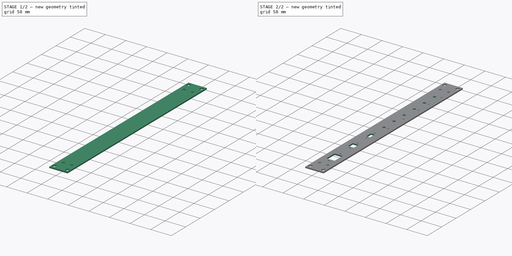
[diagram: build sequence overview — one tinted view per stage of 2, left to right]
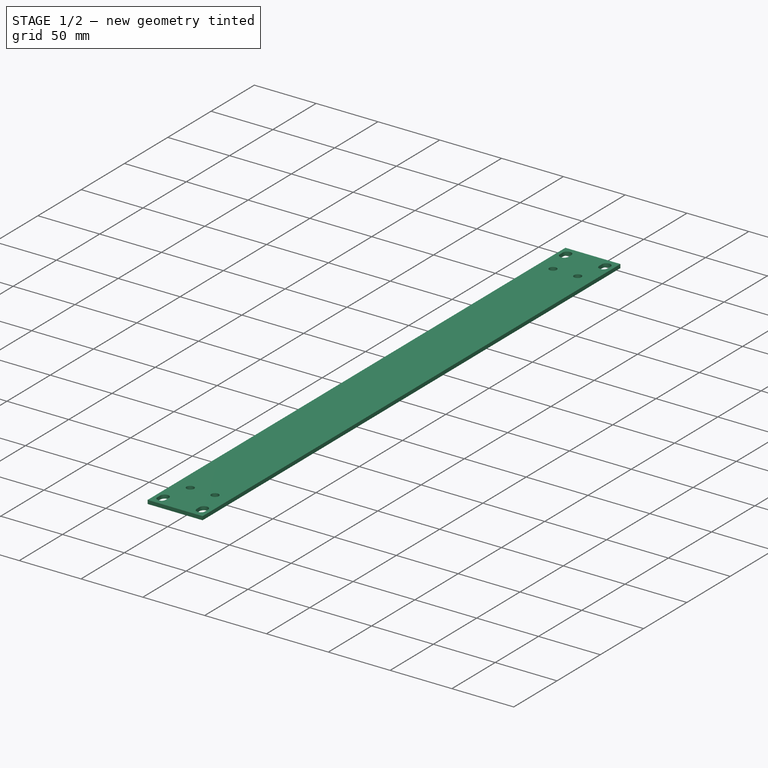
[diagram: stage 1 of 2 — iso view after this stage's code; geometry added in this stage tinted green]
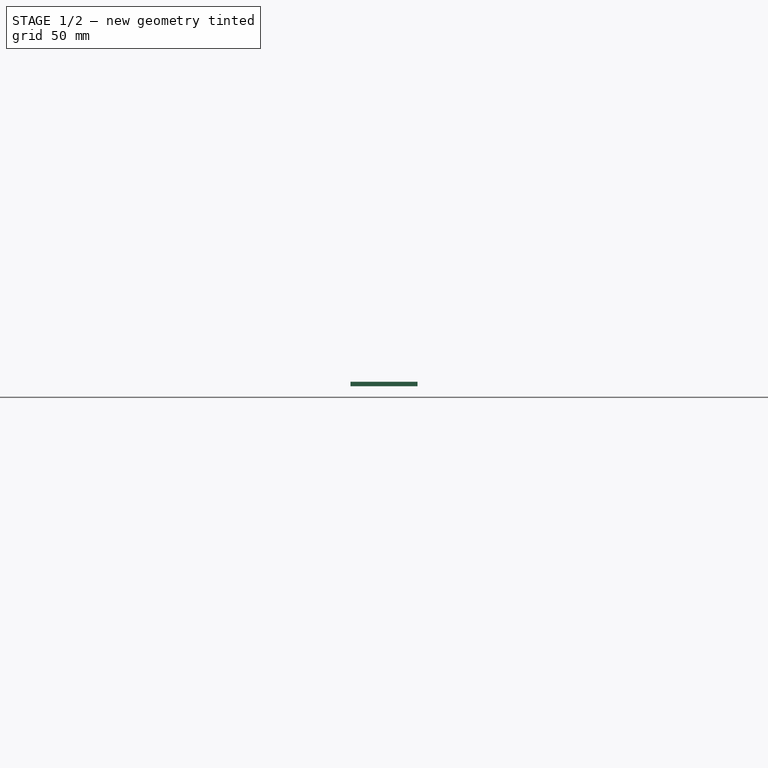
[diagram: stage 1 of 2 — front view after this stage's code; geometry added in this stage tinted green]
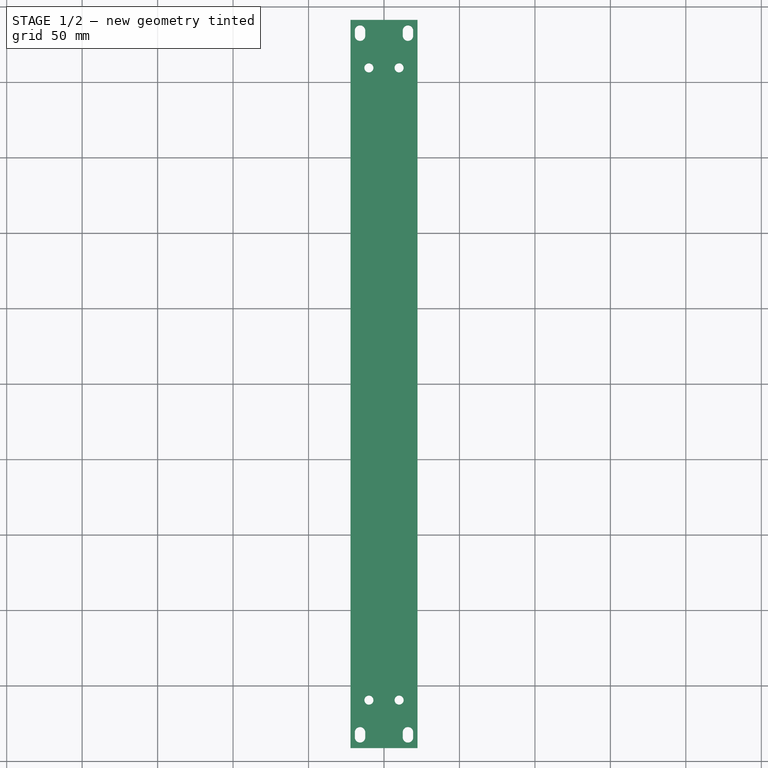
[diagram: stage 1 of 2 — top view after this stage's code; geometry added in this stage tinted green]
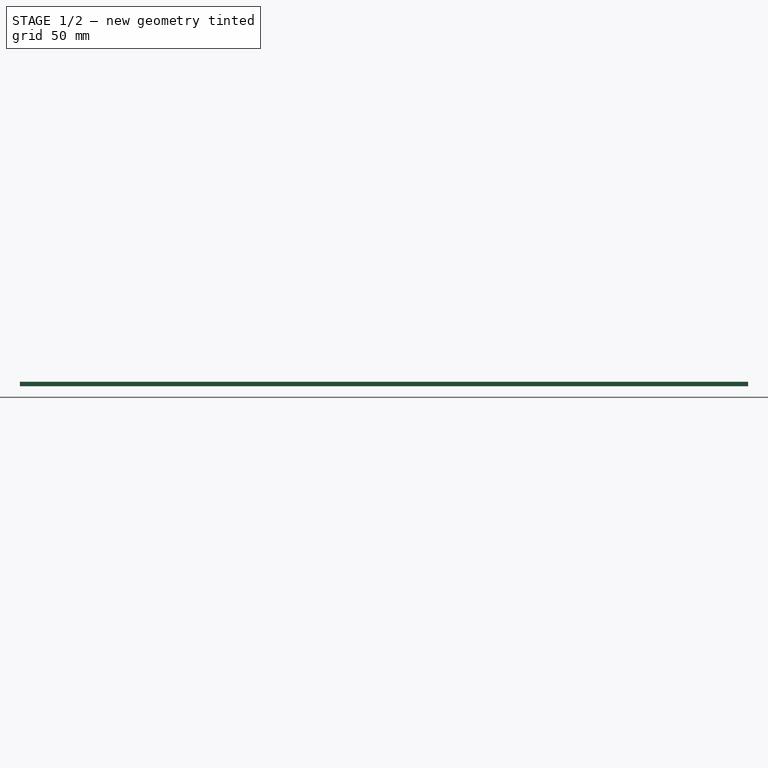
[diagram: stage 1 of 2 — right view after this stage's code; geometry added in this stage tinted green]
FCSTD DOCUMENT  (FreeCAD 0.19R24291 (Git))
Label: 1U_erratic_radio_box_panel
License: All rights reserved
LicenseURL: http://en.wikipedia.org/wiki/All_rights_reserved
objects: Part::Part2DObjectPython×13, Sketcher::SketchObject×2, PartDesign::Pad×1, Part::Feature×1, PartDesign::Pocket×1, PartDesign::Body×1, App::Part×1
note: 21 computed .brp shape members not serialized (recipe doc carries the construction recipe); baked Part::Feature solids carry a one-line shape summary decoded from their .brp

FEATURE [Sketcher::SketchObject] Sketch001
  FullyConstrained = true
  MapMode = 5
  expr: Constraints[19] = 10.3mm - .Constraints.short
  sketch-geometry (32):
    g0: LineSegment StartX=-15.875 StartY=232.5 StartZ=0 EndX=15.875 EndY=232.5 EndZ=0
    g1: LineSegment StartX=15.875 StartY=232.5 StartZ=0 EndX=15.875 EndY=-232.5 EndZ=0
    g2: LineSegment StartX=15.875 StartY=-232.5 StartZ=0 EndX=-15.875 EndY=-232.5 EndZ=0
    g3: LineSegment StartX=-15.875 StartY=-232.5 StartZ=0 EndX=-15.875 EndY=232.5 EndZ=0
    g4: ArcOfCircle CenterX=15.875 CenterY=234.2 CenterZ=0 NormalX=0 NormalY=0 NormalZ=1 AngleXU=0 Radius=3.45 StartAngle=5e-16 EndAngle=3.14159
    g5: ArcOfCircle CenterX=15.875 CenterY=230.8 CenterZ=0 NormalX=0 NormalY=0 NormalZ=1 AngleXU=0 Radius=3.45 StartAngle=3.14159 EndAngle=6.28319
    g6: LineSegment StartX=12.425 StartY=234.2 StartZ=0 EndX=12.425 EndY=230.8 EndZ=0
    g7: LineSegment StartX=19.325 StartY=234.2 StartZ=0 EndX=19.325 EndY=230.8 EndZ=0
    g8: ArcOfCircle CenterX=-15.875 CenterY=230.8 CenterZ=0 NormalX=0 NormalY=0 NormalZ=1 AngleXU=0 Radius=3.45 StartAngle=3.14159 EndAngle=6.28319
    g9: LineSegment StartX=-12.425 StartY=234.2 StartZ=0 EndX=-12.425 EndY=230.8 EndZ=0
    g10: ArcOfCircle CenterX=-15.875 CenterY=234.2 CenterZ=0 NormalX=0 NormalY=0 NormalZ=1 AngleXU=0 Radius=3.45 StartAngle=-9e-16 EndAngle=3.14159
    g11: LineSegment StartX=-19.325 StartY=234.2 StartZ=0 EndX=-19.325 EndY=230.8 EndZ=0
    g12: ArcOfCircle CenterX=15.875 CenterY=-234.2 CenterZ=0 NormalX=0 NormalY=0 NormalZ=1 AngleXU=0 Radius=3.45 StartAngle=3.14159 EndAngle=6.28319
    g13: LineSegment StartX=19.325 StartY=-230.8 StartZ=0 EndX=19.325 EndY=-234.2 EndZ=0
    g14: ArcOfCircle CenterX=15.875 CenterY=-230.8 CenterZ=0 NormalX=0 NormalY=0 NormalZ=1 AngleXU=0 Radius=3.45 StartAngle=2.5e-15 EndAngle=3.14159
    g15: LineSegment StartX=12.425 StartY=-230.8 StartZ=0 EndX=12.425 EndY=-234.2 EndZ=0
    g16: ArcOfCircle CenterX=-15.875 CenterY=-234.2 CenterZ=0 NormalX=0 NormalY=0 NormalZ=1 AngleXU=0 Radius=3.45 StartAngle=3.14159 EndAngle=6.28319
    g17: LineSegment StartX=-12.425 StartY=-230.8 StartZ=0 EndX=-12.425 EndY=-234.2 EndZ=0
    g18: ArcOfCircle CenterX=-15.875 CenterY=-230.8 CenterZ=0 NormalX=0 NormalY=0 NormalZ=1 AngleXU=0 Radius=3.45 StartAngle=-2.7e-15 EndAngle=3.14159
    g19: LineSegment StartX=-19.325 StartY=-230.8 StartZ=0 EndX=-19.325 EndY=-234.2 EndZ=0
    g20: LineSegment StartX=-22.225 StartY=241.3 StartZ=0 EndX=22.225 EndY=241.3 EndZ=0
    g21: LineSegment StartX=22.225 StartY=241.3 StartZ=0 EndX=22.225 EndY=-241.3 EndZ=0
    g22: LineSegment StartX=22.225 StartY=-241.3 StartZ=0 EndX=-22.225 EndY=-241.3 EndZ=0
    g23: LineSegment StartX=-22.225 StartY=-241.3 StartZ=0 EndX=-22.225 EndY=241.3 EndZ=0
    g24: LineSegment StartX=-10 StartY=-209.5 StartZ=0 EndX=10 EndY=-209.5 EndZ=0
    g25: LineSegment StartX=10 StartY=-209.5 StartZ=0 EndX=10 EndY=209.5 EndZ=0
    g26: LineSegment StartX=10 StartY=209.5 StartZ=0 EndX=-10 EndY=209.5 EndZ=0
    g27: LineSegment StartX=-10 StartY=209.5 StartZ=0 EndX=-10 EndY=-209.5 EndZ=0
    g28: Circle CenterX=-10 CenterY=-209.5 CenterZ=0 NormalX=0 NormalY=0 NormalZ=1 AngleXU=0 Radius=3
    g29: Circle CenterX=10 CenterY=-209.5 CenterZ=0 NormalX=0 NormalY=0 NormalZ=1 AngleXU=0 Radius=3
    g30: Circle CenterX=-10 CenterY=209.5 CenterZ=0 NormalX=0 NormalY=0 NormalZ=1 AngleXU=0 Radius=3
    g31: Circle CenterX=10 CenterY=209.5 CenterZ=0 NormalX=0 NormalY=0 NormalZ=1 AngleXU=0 Radius=3
  constraints (77):
    c: Coincident(g0,g1)
    c: Coincident(g1,g2)
    c: Coincident(g2,g3)
    c: Coincident(g3,g0)
    c: Horizontal(g0)
    c: Horizontal(g2)
    c: Vertical(g1)
    c: Vertical(g3)
    c: Symmetric(g0,g2,g-1)
    c: DistanceX(g0,g0) = 31.75
    c: DistanceY(g3,g3) = 465
    c: Tangent(g4,g7) = 1.5708
    c: Tangent(g4,g6) = -1.5708
    c: Tangent(g6,g5) = -1.5708
    c: Tangent(g7,g5) = 1.5708
    c: Vertical(g6)
    c: Equal(g4,g5)
    c: Symmetric(g4,g5,g0)
    c: DistanceX(g5,g5) = 6.9  'short'
    c: DistanceY(g5,g4) = 3.4
    c: Tangent(g10,g9) = 1.5708
    c: Tangent(g10,g11) = -1.5708
    c: Tangent(g11,g8) = -1.5708
    c: Tangent(g9,g8) = 1.5708
    c: Vertical(g11)
    c: Equal(g10,g8)
    c: Equal(g5,g8) = 6.9  'short'
    c: DistanceY(g8,g10) = 3.4
    c: Symmetric(g8,g10,g0)
    c: Tangent(g14,g13) = 1.5708
    c: Tangent(g14,g15) = -1.5708
    c: Tangent(g15,g12) = -1.5708
    c: Tangent(g13,g12) = 1.5708
    c: Vertical(g15)
    c: Equal(g14,g12)
    c: Equal(g5,g12) = 6.9  'short'
    c: DistanceY(g12,g14) = 3.4
    c: Symmetric(g12,g14,g1)
    c: Tangent(g18,g17) = 1.5708
    c: Tangent(g18,g19) = -1.5708
    c: Tangent(g19,g16) = -1.5708
    c: Tangent(g17,g16) = 1.5708
    c: Vertical(g19)
    c: Equal(g18,g16)
    c: Equal(g5,g16) = 6.9  'short'
    c: DistanceY(g16,g18) = 3.4
    c: Symmetric(g16,g18,g2)
    c: Coincident(g20,g21)
    c: Coincident(g21,g22)
    c: Coincident(g22,g23)
    c: Coincident(g23,g20)
    c: Horizontal(g20)
    c: Horizontal(g22)
    c: Vertical(g21)
    c: Vertical(g23)
    c: Symmetric(g20,g22,g-1)
    c: DistanceX(g20,g20) = 44.45
    c: DistanceY(g21,g21) = 482.6
    c: Coincident(g24,g25)
    c: Coincident(g25,g26)
    c: Coincident(g26,g27)
    c: Coincident(g27,g24)
    c: Horizontal(g24)
    c: Horizontal(g26)
    c: Vertical(g25)
    c: Vertical(g27)
    c: DistanceX(g24,g24) = 20
    c: Symmetric(g26,g24,g-1)
    c: DistanceY(g25,g25) = 419
    c: Coincident(g28,g24)
    c: Coincident(g29,g24)
    c: Coincident(g30,g26)
    c: Coincident(g31,g25)
    c: Equal(g31,g30)
    c: Equal(g30,g28)
    c: Equal(g28,g29)
    c: Diameter(g28) = 6
FEATURE [PartDesign::Pad] Pad
  Direction = (1,1,1)
  Length = 3
  Length2 = 100
  Profile = -> Sketch001
  Type = 0
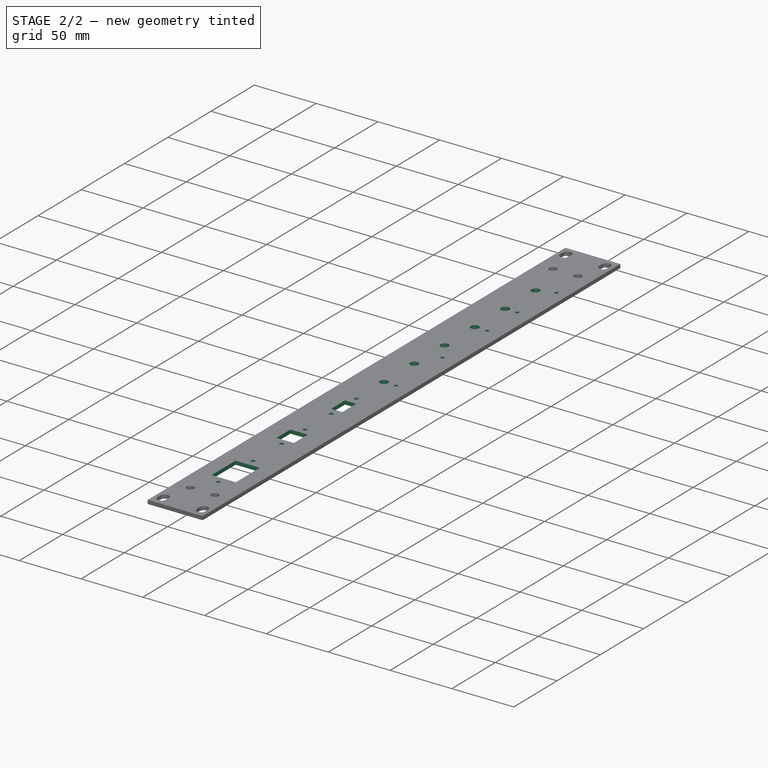
[diagram: stage 2 of 2 — iso view after this stage's code; geometry added in this stage tinted green]
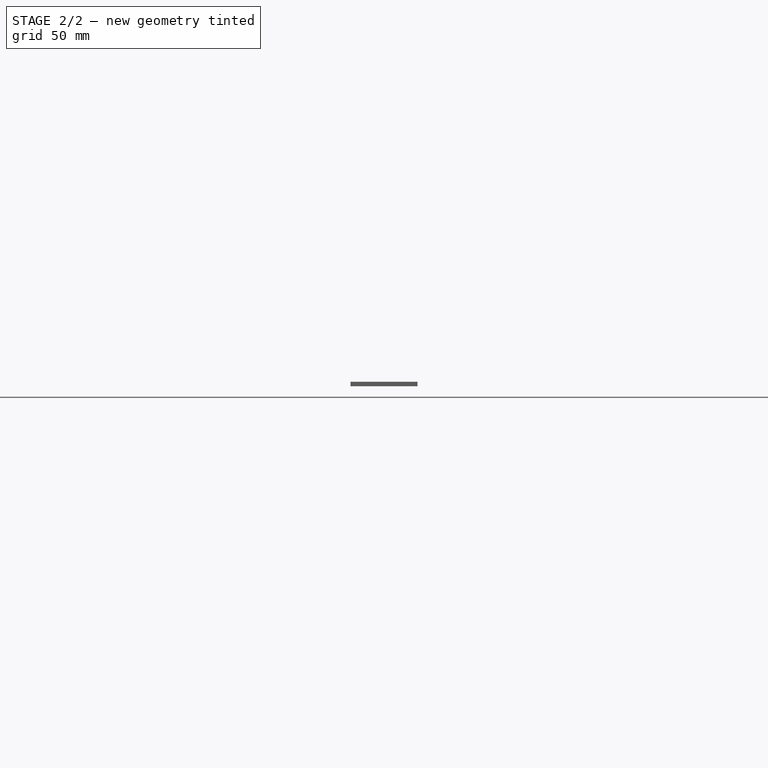
[diagram: stage 2 of 2 — front view after this stage's code; geometry added in this stage tinted green]
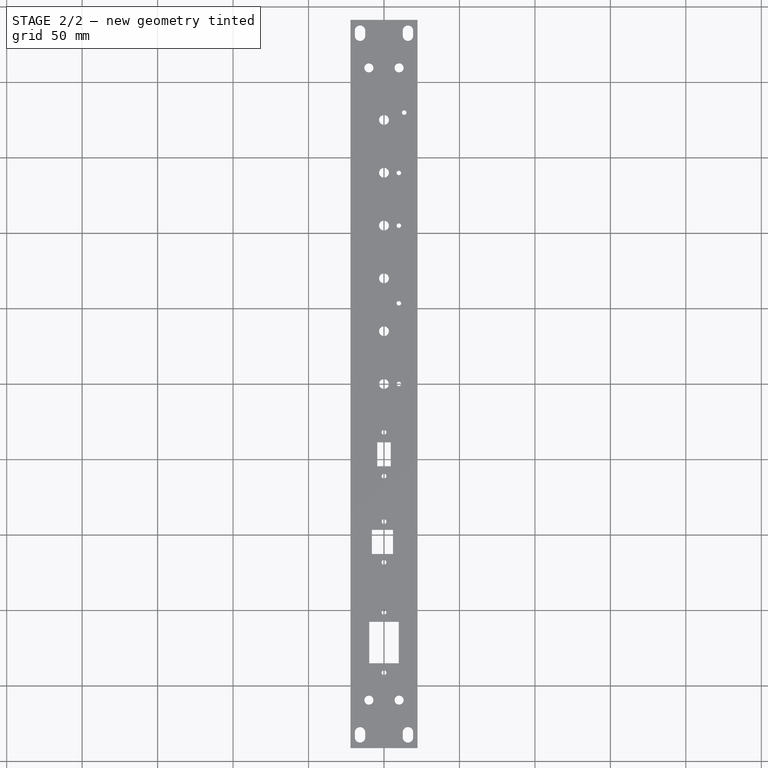
[diagram: stage 2 of 2 — top view after this stage's code; geometry added in this stage tinted green]
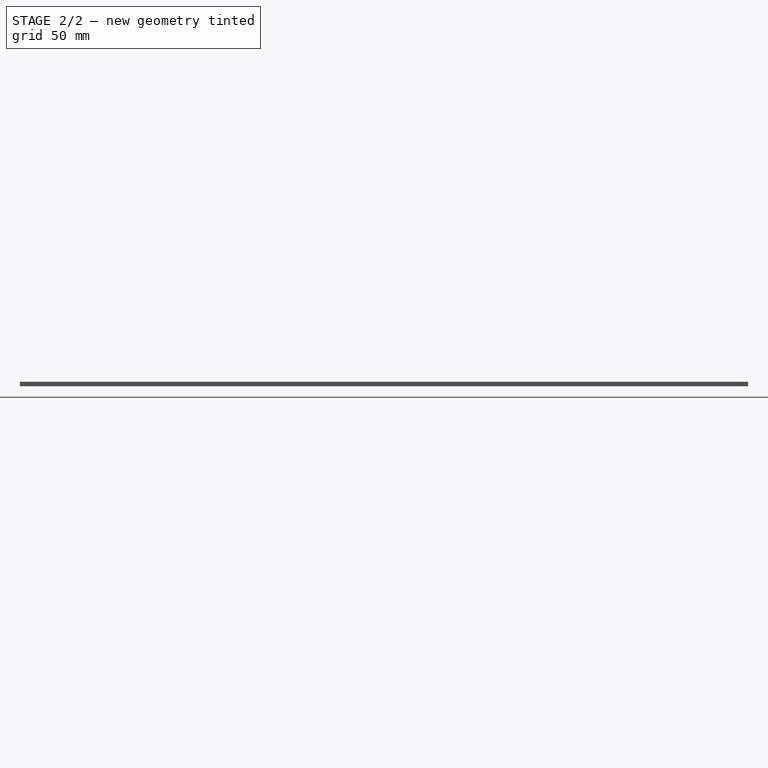
[diagram: stage 2 of 2 — right view after this stage's code; geometry added in this stage tinted green]
FEATURE [Sketcher::SketchObject] Sketch
  ExternalGeometry = -> [Pad]
  FullyConstrained = false
  MapMode = 5
  Placement = pos=(0,0,3) rot=(0,0,1;0rad)
  Support = -> [Pad]
  sketch-geometry (53):
    g0: LineSegment StartX=-4.5 StartY=-38.5444 StartZ=0 EndX=4.5 EndY=-38.5444 EndZ=0
    g1: LineSegment StartX=4.5 StartY=-38.5444 StartZ=0 EndX=4.5 EndY=-54.5444 EndZ=0
    g2: LineSegment StartX=4.5 StartY=-54.5444 StartZ=0 EndX=-4.5 EndY=-54.5444 EndZ=0
    g3: LineSegment StartX=-4.5 StartY=-54.5444 StartZ=0 EndX=-4.5 EndY=-38.5444 EndZ=0
    g4: LineSegment StartX=-9.8 StartY=-185.1 StartZ=0 EndX=9.8 EndY=-185.1 EndZ=0
    g5: LineSegment StartX=9.8 StartY=-185.1 StartZ=0 EndX=9.8 EndY=-157.5 EndZ=0
    g6: LineSegment StartX=9.8 StartY=-157.5 StartZ=0 EndX=-9.8 EndY=-157.5 EndZ=0
    g7: LineSegment StartX=-9.8 StartY=-157.5 StartZ=0 EndX=-9.8 EndY=-185.1 EndZ=0
    g8: LineSegment StartX=-8 StartY=-112.677 StartZ=0 EndX=6 EndY=-112.677 EndZ=0
    g9: LineSegment StartX=6 StartY=-112.677 StartZ=0 EndX=6 EndY=-96.677 EndZ=0
    g10: LineSegment StartX=6 StartY=-96.677 StartZ=0 EndX=-8 EndY=-96.677 EndZ=0
    g11: LineSegment StartX=-8 StartY=-96.677 StartZ=0 EndX=-8 EndY=-112.677 EndZ=0
    g12: Circle CenterX=0 CenterY=0 CenterZ=0 NormalX=0 NormalY=0 NormalZ=1 AngleXU=0 Radius=3.25
    g13: GeomPoint X=0 Y=-171.3 Z=0
    g14: GeomPoint X=-1 Y=-104.677 Z=0
    g15: Circle CenterX=0 CenterY=-91.177 CenterZ=0 NormalX=0 NormalY=0 NormalZ=1 AngleXU=0 Radius=1.6
    g16: Circle CenterX=0 CenterY=-118.177 CenterZ=0 NormalX=0 NormalY=0 NormalZ=1 AngleXU=0 Radius=1.6
    g17: LineSegment StartX=0 StartY=-118.177 StartZ=0 EndX=0 EndY=-91.177 EndZ=0
    g18: GeomPoint X=0 Y=-104.677 Z=0
    g19: GeomPoint X=0 Y=-46.5444 Z=0
    g20: Circle CenterX=0 CenterY=-61.0444 CenterZ=0 NormalX=0 NormalY=0 NormalZ=1 AngleXU=0 Radius=1.6
    g21: Circle CenterX=0 CenterY=-32.0444 CenterZ=0 NormalX=0 NormalY=0 NormalZ=1 AngleXU=0 Radius=1.6
    g22: LineSegment StartX=0 StartY=-61.0444 StartZ=0 EndX=0 EndY=-32.0444 EndZ=0
    g23: Circle CenterX=0 CenterY=35 CenterZ=0 NormalX=0 NormalY=0 NormalZ=1 AngleXU=0 Radius=3.25
    g24: LineSegment StartX=0 StartY=0 StartZ=0 EndX=0 EndY=35 EndZ=0
    g25: Circle CenterX=0 CenterY=70 CenterZ=0 NormalX=0 NormalY=0 NormalZ=1 AngleXU=0 Radius=3.25
    g26: LineSegment StartX=0 StartY=35 StartZ=0 EndX=0 EndY=70 EndZ=0
    g27: Circle CenterX=0 CenterY=105 CenterZ=0 NormalX=0 NormalY=0 NormalZ=1 AngleXU=0 Radius=3.25
    g28: LineSegment StartX=0 StartY=70 StartZ=0 EndX=0 EndY=105 EndZ=0
    g29: Circle CenterX=0 CenterY=140 CenterZ=0 NormalX=0 NormalY=0 NormalZ=1 AngleXU=0 Radius=3.25
    g30: LineSegment StartX=0 StartY=105 StartZ=0 EndX=0 EndY=140 EndZ=0
    g31: Circle CenterX=0 CenterY=175 CenterZ=0 NormalX=0 NormalY=0 NormalZ=1 AngleXU=0 Radius=3.25
    g32: LineSegment StartX=0 StartY=140 StartZ=0 EndX=0 EndY=175 EndZ=0
    g33: Circle CenterX=-10 CenterY=0 CenterZ=0 NormalX=0 NormalY=0 NormalZ=1 AngleXU=0 Radius=1.5
    g34: Circle CenterX=-10 CenterY=35 CenterZ=0 NormalX=0 NormalY=0 NormalZ=1 AngleXU=0 Radius=1.5
    g35: LineSegment StartX=-10 StartY=0 StartZ=0 EndX=-10 EndY=35 EndZ=0
    g36: Circle CenterX=-10 CenterY=70 CenterZ=0 NormalX=0 NormalY=0 NormalZ=1 AngleXU=0 Radius=1.5
    g37: LineSegment StartX=-10 StartY=35 StartZ=0 EndX=-10 EndY=70 EndZ=0
    g38: Circle CenterX=-10 CenterY=105 CenterZ=0 NormalX=0 NormalY=0 NormalZ=1 AngleXU=0 Radius=1.5
    g39: LineSegment StartX=-10 StartY=70 StartZ=0 EndX=-10 EndY=105 EndZ=0
    g40: Circle CenterX=-10 CenterY=140 CenterZ=0 NormalX=0 NormalY=0 NormalZ=1 AngleXU=0 Radius=1.5
    g41: LineSegment StartX=-10 StartY=105 StartZ=0 EndX=-10 EndY=140 EndZ=0
    g42: Circle CenterX=-10 CenterY=175 CenterZ=0 NormalX=0 NormalY=0 NormalZ=1 AngleXU=0 Radius=1.5
    g43: LineSegment StartX=-10 StartY=140 StartZ=0 EndX=-10 EndY=175 EndZ=0
    g44: LineSegment StartX=9.84362 StartY=0 StartZ=0 EndX=9.84362 EndY=242.577 EndZ=0
    g45: Circle CenterX=9.84362 CenterY=0 CenterZ=0 NormalX=0 NormalY=0 NormalZ=1 AngleXU=0 Radius=1.5
    g46: Circle CenterX=9.84362 CenterY=53.4583 CenterZ=0 NormalX=0 NormalY=0 NormalZ=1 AngleXU=0 Radius=1.5
    g47: Circle CenterX=9.84362 CenterY=104.952 CenterZ=0 NormalX=0 NormalY=0 NormalZ=1 AngleXU=0 Radius=1.5
    g48: Circle CenterX=9.84362 CenterY=139.878 CenterZ=0 NormalX=0 NormalY=0 NormalZ=1 AngleXU=0 Radius=1.5
    g49: Circle CenterX=13.4202 CenterY=179.879 CenterZ=0 NormalX=0 NormalY=0 NormalZ=1 AngleXU=0 Radius=1.5
    g50: Circle CenterX=0 CenterY=-191.3 CenterZ=0 NormalX=0 NormalY=0 NormalZ=1 AngleXU=0 Radius=1.6
    g51: Circle CenterX=0 CenterY=-151.3 CenterZ=0 NormalX=0 NormalY=0 NormalZ=1 AngleXU=0 Radius=1.6
    g52: LineSegment StartX=0 StartY=-191.3 StartZ=0 EndX=0 EndY=-151.3 EndZ=0
  constraints (126):
    c: Coincident(g0,g1)
    c: Coincident(g1,g2)
    c: Coincident(g2,g3)
    c: Coincident(g3,g0)
    c: Horizontal(g0)
    c: Horizontal(g2)
    c: Vertical(g1)
    c: Vertical(g3)
    c: Coincident(g4,g5)
    c: Coincident(g5,g6)
    c: Coincident(g6,g7)
    c: Coincident(g7,g4)
    c: Horizontal(g4)
    c: Horizontal(g6)
    c: Vertical(g5)
    c: Vertical(g7)
    c: Coincident(g8,g9)
    c: Coincident(g9,g10)
    c: Coincident(g10,g11)
    c: Coincident(g11,g8)
    c: Horizontal(g8)
    c: Horizontal(g10)
    c: Vertical(g9)
    c: Vertical(g11)
    c: Diameter(g12) = 6.5
    c: Symmetric(g6,g4,g13)
    c: PointOnObject(g13,g-2)
    c: Distance(g5) = 27.6
    c: Distance(g6) = 19.6
    c: DistanceY(g-3,g13) = 70
    c: Symmetric(g8,g10,g14)
    c: Distance(g10) = 14
    c: Distance(g9) = 16
    c: Coincident(g17,g16)
    c: Coincident(g17,g15)
    c: Vertical(g17)
    c: Symmetric(g15,g16,g18)
    c: Horizontal(g18,g14)
    c: Distance(g17) = 27
    c: Equal(g16,g15)
    c: Diameter(g16) = 3.2
    c: DistanceX(g8,g16) = 8
    c: PointOnObject(g15,g-2)
    c: Symmetric(g0,g1,g19)
    c: Symmetric(g21,g20,g19)
    c: Coincident(g22,g20)
    c: Coincident(g22,g21)
    c: Vertical(g22)
    c: Equal(g21,g20)
    c: Diameter(g20) = 3.2
    c: Distance(g22) = 29
    c: Distance(g0) = 9
    c: Distance(g1) = 16
    c: PointOnObject(g21,g-2)
    c: Equal(g12,g23) = 6
    c: Coincident(g12,g24)
    c: Coincident(g23,g24)
    c: Equal(g12,g25) = 6
    c: Coincident(g23,g26)
    c: Coincident(g25,g26)
    c: Equal(g24,g26)
    c: Parallel(g26,g24)
    c: Equal(g12,g27) = 6
    c: Coincident(g25,g28)
    c: Coincident(g27,g28)
    c: Equal(g24,g28)
    c: Parallel(g28,g24)
    c: Equal(g12,g29) = 6
    c: Coincident(g27,g30)
    c: Coincident(g29,g30)
    c: Equal(g24,g30)
    c: Parallel(g30,g24)
    c: Equal(g12,g31) = 6
    c: Coincident(g29,g32)
    c: Coincident(g31,g32)
    c: Equal(g24,g32)
    c: Parallel(g32,g24)
    c: Vertical(g24)
    c: PointOnObject(g12,g-2)
    c: PointOnObject(g12,g-1)
    c: Distance(g31,g29) = 35
    c: PointOnObject(g33,g-1)
    c: Diameter(g33) = 3
    c: Equal(g33,g34) = 3
    c: Coincident(g33,g35)
    c: Coincident(g34,g35)
    c: Equal(g33,g36) = 3
    c: Coincident(g34,g37)
    c: Coincident(g36,g37)
    c: Equal(g35,g37)
    c: Parallel(g37,g35)
    c: Equal(g33,g38) = 3
    c: Coincident(g36,g39)
    c: Coincident(g38,g39)
    c: Equal(g35,g39)
    c: Parallel(g39,g35)
    c: Equal(g33,g40) = 3
    c: Coincident(g38,g41)
    c: Coincident(g40,g41)
    c: Equal(g35,g41)
    c: Parallel(g41,g35)
    c: Equal(g33,g42) = 3
    c: Coincident(g40,g43)
    c: Coincident(g42,g43)
    c: Equal(g35,g43)
    c: Parallel(g43,g35)
    c: Vertical(g35)
    c: Equal(g32,g37)
    c: DistanceX(g33,g12) = 10
    c: PointOnObject(g44,g-1)
    c: Vertical(g44)
    c: Coincident(g45,g44)
    c: PointOnObject(g46,g44)
    c: PointOnObject(g47,g44)
    c: PointOnObject(g48,g44)
    c: Equal(g45,g46)
    c: Equal(g46,g47)
    c: Equal(g47,g48)
    c: Diameter(g45) = 3
    c: Symmetric(g51,g50,g13)
    c: Coincident(g52,g50)
    c: Coincident(g52,g51)
    c: Distance(g52) = 40
    c: Equal(g16,g51)
    c: Equal(g51,g50)
    c: Vertical(g52)
FEATURE [Part::Part2DObjectPython] ShapeString  label="ShapeString_OZ3RF"  # Draft 2D object (typed FeaturePython)
  FontFile = <path>
  Placement = pos=(-217.16,-2.21,0) rot=(0,0,1;0rad)
  Size = 2.1
  String = OZ3RF
  Tracking = 0
FEATURE [Part::Part2DObjectPython] ShapeString001  label="ShapeString_ETH"  # Draft 2D object (typed FeaturePython)
  FontFile = <path>
  Placement = pos=(-118.4,13.98,0) rot=(0,0,1;0rad)
  Size = 2.1
  String = Ethernet
  Tracking = 0
FEATURE [Part::Feature] Part__Feature  label="Kaltgeraetebuchse2"
  Placement = pos=(-171.4,0,-9.8) rot=(0,0,1;0rad)
  shape: bbox 49.74 x 22.33 x 26.5 mm, 145 faces (baked)
FEATURE [PartDesign::Pocket] Pocket
  BaseFeature = -> Pad
  Length = 5
  Length2 = 100
  Profile = -> Sketch
  Type = 1
FEATURE [PartDesign::Body] Body
  Group = -> [Sketch001,Pad,Sketch,Pocket]
  Origin = -> Origin001
  Placement = pos=(0,0,0) rot=(0,0,1;4.71239rad)
  Tip = -> Pocket
FEATURE [Part::Part2DObjectPython] ShapeString002  label="ShapeString_ERRATIC"  # Draft 2D object (typed FeaturePython)
  FontFile = <path>
  Placement = pos=(-149.83,-19.42,0) rot=(0,0,1;0rad)
  Size = 5
  String = ERRATIC RADIO BOX
  Tracking = 0
FEATURE [Part::Part2DObjectPython] ShapeString003  label="ShapeString_USB"  # Draft 2D object (typed FeaturePython)
  FontFile = <path>
  Placement = pos=(-52.4,13.98,0) rot=(0,0,1;0rad)
  Size = 2.1
  String = USB
  Tracking = 0
FEATURE [Part::Part2DObjectPython] ShapeString004  label="ShapeString_RXTXs"  # Draft 2D object (typed FeaturePython)
  FontFile = <path>
  Placement = pos=(-8.4,13.98,0) rot=(0,0,1;0rad)
  Size = 2.1
  String = RX/TX       TX        RX        RX/TX     RX/TX       RX
  Tracking = 0
FEATURE [Part::Part2DObjectPython] ShapeString005  label="ShapeString_OZ3RF001"  # Draft 2D object (typed FeaturePython)
  FontFile = <path>
  Placement = pos=(200.84,-2.21,0) rot=(0,0,1;0rad)
  Size = 2.1
  String = OZ3RF
  Tracking = 0
FEATURE [Part::Part2DObjectPython] ShapeString006  label="ShapeString_RTLSDR"  # Draft 2D object (typed FeaturePython)
  FontFile = <path>
  Placement = pos=(164.84,-10.21,0) rot=(0,0,1;0rad)
  Size = 2.1
  String = RTLSDR
  Tracking = 0
FEATURE [Part::Part2DObjectPython] ShapeString007  label="ShapeString_RTLSDR001"  # Draft 2D object (typed FeaturePython)
  FontFile = <path>
  Placement = pos=(164.84,-20.21,0) rot=(0,0,1;0rad)
  Size = 2.1
  String = AIRSPY
  Tracking = 0
FEATURE [Part::Part2DObjectPython] ShapeString008  label="ShapeString_RTLSDR002"  # Draft 2D object (typed FeaturePython)
  FontFile = <path>
  Placement = pos=(172.84,-15.21,0) rot=(0,0,1;0rad)
  Size = 2.1
  String = +
  Tracking = 0
FEATURE [Part::Part2DObjectPython] ShapeString009  label="ShapeString_hackrfone"  # Draft 2D object (typed FeaturePython)
  FontFile = <path>
  Placement = pos=(123.84,-19.21,0) rot=(0,0,1;0rad)
  Size = 2.1
  String = HackRF One
  Tracking = 0
FEATURE [Part::Part2DObjectPython] ShapeString010  label="ShapeString_BBOX"  # Draft 2D object (typed FeaturePython)
  FontFile = <path>
  Placement = pos=(98.84,-19.21,0) rot=(0,0,1;0rad)
  Size = 2.1
  String = BBOX
  Tracking = 0
FEATURE [Part::Part2DObjectPython] ShapeString011  label="ShapeString_limesdr"  # Draft 2D object (typed FeaturePython)
  FontFile = <path>
  Placement = pos=(32.84,-19.21,0) rot=(0,0,1;0rad)
  Size = 2.1
  String = LimeSDR Mini
  Tracking = 0
FEATURE [Part::Part2DObjectPython] ShapeString012  label="ShapeString_CC2531"  # Draft 2D object (typed FeaturePython)
  FontFile = <path>
  Placement = pos=(-9.16,-19.21,0) rot=(0,0,1;0rad)
  Size = 2.1
  String = CC2531
  Tracking = 0
FEATURE [App::Part] Part
  Group = -> [Body,ShapeString,ShapeString001,ShapeString002,ShapeString003,ShapeString004,ShapeString005,ShapeString006,ShapeString007,ShapeString008,ShapeString009,ShapeString010,ShapeString011,ShapeString012]
  Origin = -> Origin
note: 13 file-system paths scrubbed to <path> (originals preserved in the JSON sidecar)
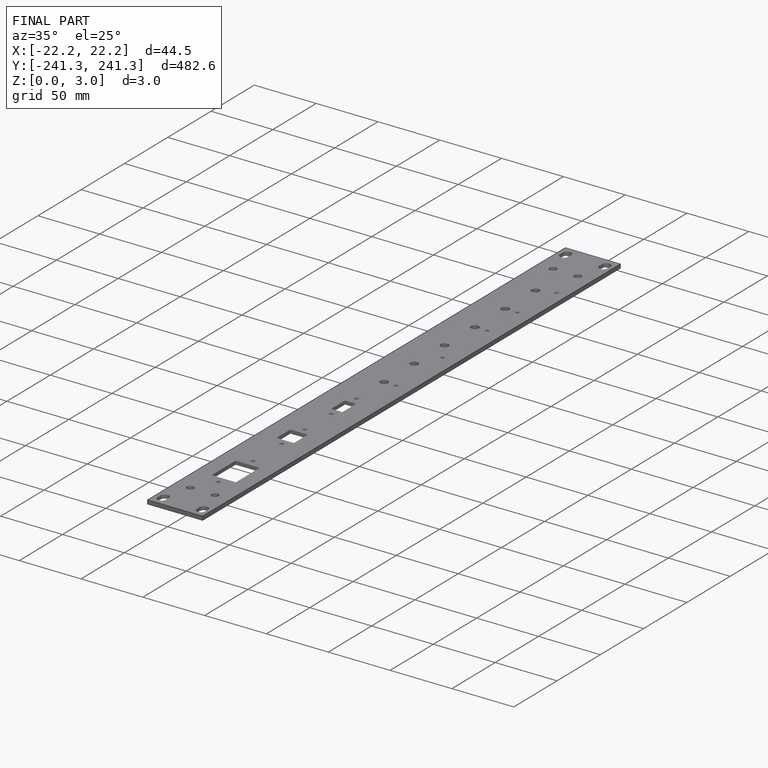
[diagram: finished part — iso view with bounding-box wireframe]
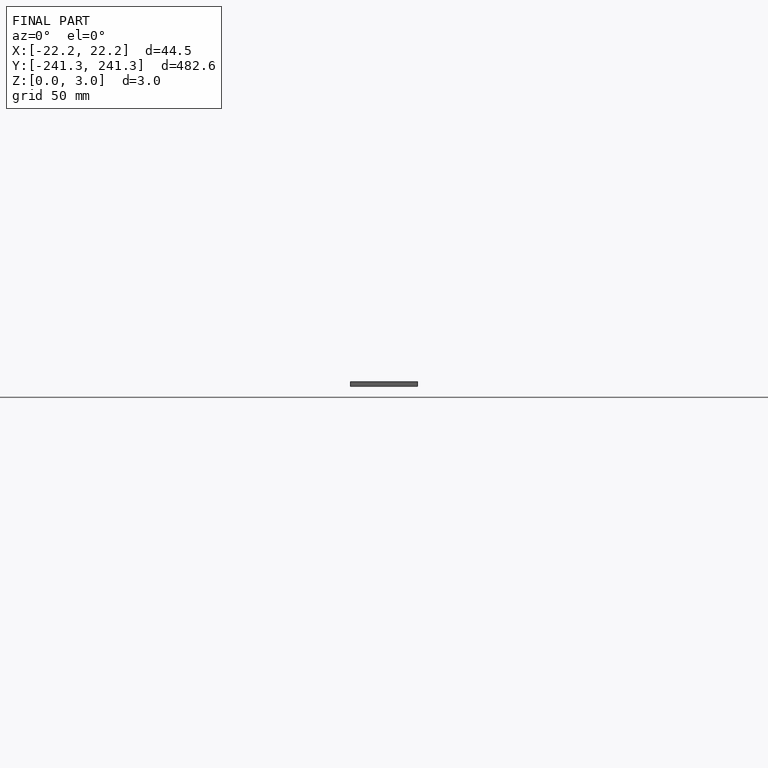
[diagram: finished part — front view with bounding-box wireframe]
